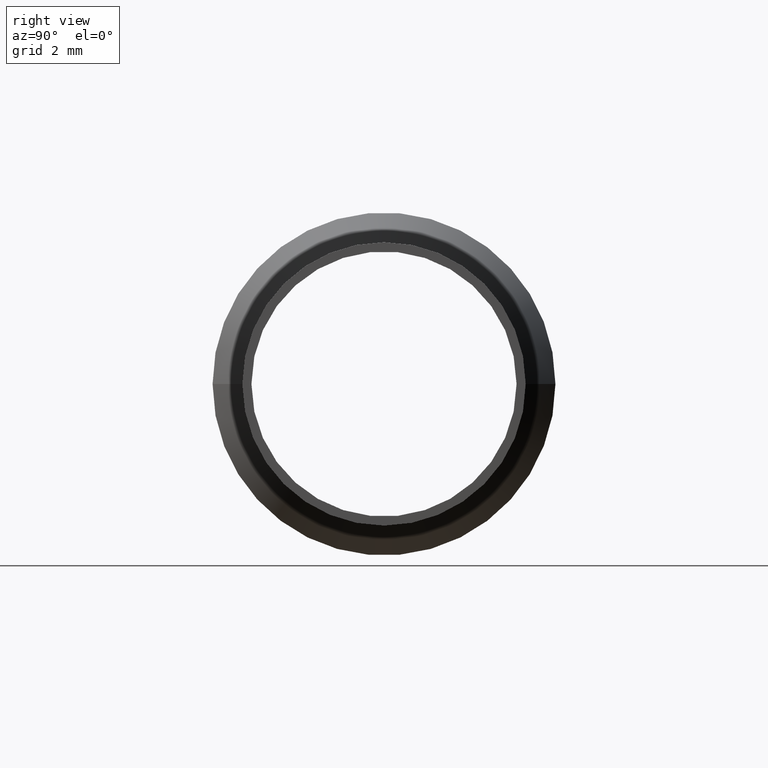
[diagram: clean part render]
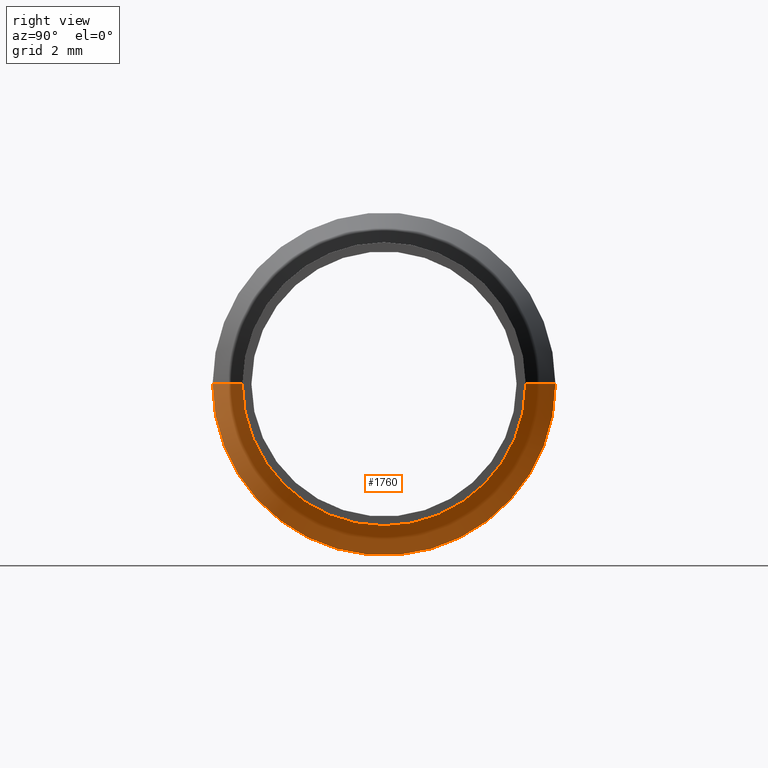
[diagram: same view with one face highlighted and labeled with its STEP entity id]
A machine part, right view. The second image highlights one B-rep face of the part: STEP entity #1760.
In plain terms, the highlighted conical surface has half-angle 23.429 deg.
Its self-contained STEP definition (entity closure, byte-faithful):
#210=CARTESIAN_POINT('',(0.,0.,0.));
#220=DIRECTION('',(1.,0.,0.));
#230=DIRECTION('',(0.,1.,0.));
#240=AXIS2_PLACEMENT_3D('',#210,#220,#230);
#250=CIRCLE('',#240,3.75);
#260=CARTESIAN_POINT('',(0.,3.75,0.));
#270=VERTEX_POINT('',#260);
#280=CARTESIAN_POINT('',(4.1036458038222E-32,-3.75,-4.59242549680258E-16
));
#290=VERTEX_POINT('',#280);
#320=EDGE_CURVE('',#290,#270,#250,.T.);
#1250=CARTESIAN_POINT('',(1.5,-3.1,-3.79640507735679E-16));
#1260=VERTEX_POINT('',#1250);
#1340=CARTESIAN_POINT('',(1.5,3.1,0.));
#1350=VERTEX_POINT('',#1340);
#1380=CARTESIAN_POINT('',(1.5,0.,0.));
#1390=DIRECTION('',(1.,0.,0.));
#1400=DIRECTION('',(0.,1.,0.));
#1410=AXIS2_PLACEMENT_3D('',#1380,#1390,#1400);
#1420=CIRCLE('',#1410,3.1);
#1430=EDGE_CURVE('',#1260,#1350,#1420,.T.);
#1550=CARTESIAN_POINT('',(0.,0.,0.));
#1560=DIRECTION('',(-1.,0.,0.));
#1570=DIRECTION('',(0.,1.,0.));
#1580=AXIS2_PLACEMENT_3D('',#1550,#1560,#1570);
#1590=CONICAL_SURFACE('',#1580,3.75,0.408907828950925);
#1600=CARTESIAN_POINT('',(0.,-3.75,-4.59242549680258E-16));
#1610=DIRECTION('',(-0.917555625309924,-0.397607437634301,
-4.86928675816027E-17));
#1620=VECTOR('',#1610,9.43141311015681);
#1630=LINE('',#1600,#1620);
#1640=EDGE_CURVE('',#1260,#290,#1630,.T.);
#1650=ORIENTED_EDGE('',*,*,#1640,.T.);
#1660=ORIENTED_EDGE('',*,*,#1430,.F.);
#1670=CARTESIAN_POINT('',(0.,3.75,0.));
#1680=DIRECTION('',(-0.917555625309924,0.397607437634301,0.));
#1690=VECTOR('',#1680,9.43141311015681);
#1700=LINE('',#1670,#1690);
#1710=EDGE_CURVE('',#1350,#270,#1700,.T.);
#1720=ORIENTED_EDGE('',*,*,#1710,.F.);
#1730=ORIENTED_EDGE('',*,*,#320,.T.);
#1740=EDGE_LOOP('',(#1730,#1720,#1660,#1650));
#1750=FACE_OUTER_BOUND('',#1740,.T.);
#1760=ADVANCED_FACE('',(#1750),#1590,.T.);